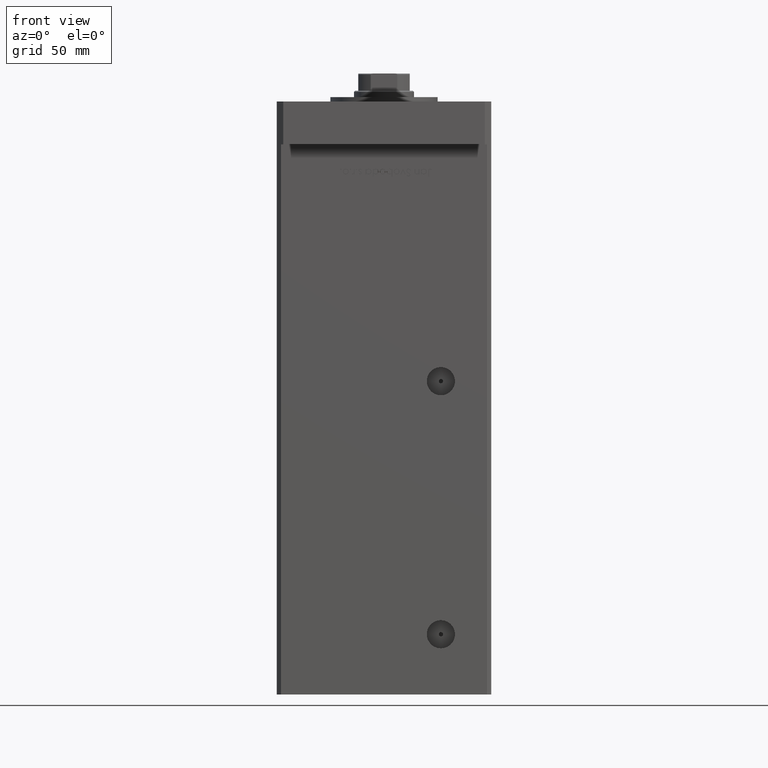
[diagram: clean part render]
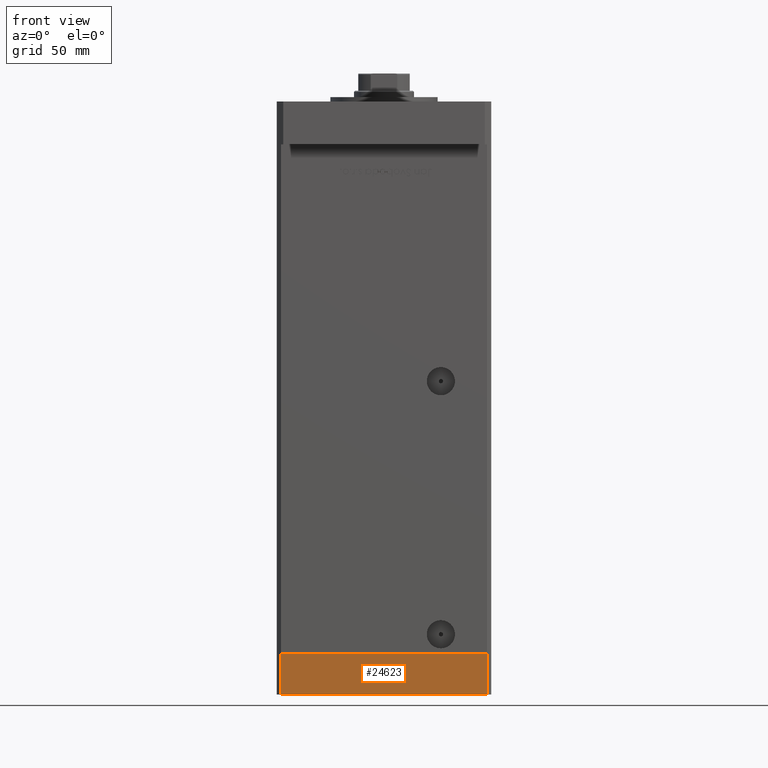
[diagram: same view with one face highlighted and labeled with its STEP entity id]
A machine part, front view. The second image highlights one B-rep face of the part: STEP entity #24623.
In plain terms, the highlighted planar face has unit normal (0, -1, -0).
Its self-contained STEP definition (entity closure, byte-faithful):
#1375 = DIRECTION ( 'NONE',  ( 0.000000000000000000, 0.000000000000000000, 1.000000000000000000 ) ) ;
#4000 = DIRECTION ( 'NONE',  ( 0.000000000000000000, -0.000000000000000000, -1.000000000000000000 ) ) ;
#4103 = LINE ( 'NONE', #24804, #38280 ) ;
#8605 = EDGE_CURVE ( 'NONE', #29289, #28909, #4103, .T. ) ;
#10633 = AXIS2_PLACEMENT_3D ( 'NONE', #53892, #37255, #4000 ) ;
#10728 = EDGE_CURVE ( 'NONE', #51690, #29289, #46894, .T. ) ;
#15553 = ORIENTED_EDGE ( 'NONE', *, *, #28654, .T. ) ;
#22316 = ORIENTED_EDGE ( 'NONE', *, *, #51780, .T. ) ;
#22323 = DIRECTION ( 'NONE',  ( 0.000000000000000000, 0.000000000000000000, 1.000000000000000000 ) ) ;
#22813 = DIRECTION ( 'NONE',  ( 1.000000000000000000, 0.000000000000000000, 0.000000000000000000 ) ) ;
#24623 = ADVANCED_FACE ( 'NONE', ( #41088 ), #53365, .T. ) ;
#24804 = CARTESIAN_POINT ( 'NONE',  ( -47.99999999999999289, -43.50000000000001421, 0.000000000000000000 ) ) ;
#25134 = VERTEX_POINT ( 'NONE', #25589 ) ;
#25589 = CARTESIAN_POINT ( 'NONE',  ( 47.99999999999999289, -43.50000000000001421, -19.00000000000000000 ) ) ;
#27253 = VECTOR ( 'NONE', #22323, 1000.000000000000000 ) ;
#27770 = EDGE_LOOP ( 'NONE', ( #36707, #42201, #22316, #15553 ) ) ;
#28654 = EDGE_CURVE ( 'NONE', #25134, #28909, #35161, .T. ) ;
#28909 = VERTEX_POINT ( 'NONE', #41634 ) ;
#29289 = VERTEX_POINT ( 'NONE', #39581 ) ;
#31585 = CARTESIAN_POINT ( 'NONE',  ( 47.99999999999999289, -43.50000000000001421, -19.00000000000000000 ) ) ;
#32477 = DIRECTION ( 'NONE',  ( 1.000000000000000000, 0.000000000000000000, 0.000000000000000000 ) ) ;
#35161 = LINE ( 'NONE', #31585, #27253 ) ;
#36707 = ORIENTED_EDGE ( 'NONE', *, *, #8605, .F. ) ;
#37255 = DIRECTION ( 'NONE',  ( 0.000000000000000000, -1.000000000000000000, 0.000000000000000000 ) ) ;
#38185 = CARTESIAN_POINT ( 'NONE',  ( -47.99999999999999289, -43.50000000000001421, -19.00000000000000000 ) ) ;
#38280 = VECTOR ( 'NONE', #32477, 1000.000000000000000 ) ;
#39581 = CARTESIAN_POINT ( 'NONE',  ( -47.99999999999999289, -43.50000000000001421, 0.000000000000000000 ) ) ;
#39982 = CARTESIAN_POINT ( 'NONE',  ( -47.99999999999999289, -43.50000000000001421, -19.00000000000000000 ) ) ;
#41088 = FACE_OUTER_BOUND ( 'NONE', #27770, .T. ) ;
#41634 = CARTESIAN_POINT ( 'NONE',  ( 47.99999999999999289, -43.50000000000001421, 0.000000000000000000 ) ) ;
#42201 = ORIENTED_EDGE ( 'NONE', *, *, #10728, .F. ) ;
#44344 = VECTOR ( 'NONE', #22813, 1000.000000000000000 ) ;
#46894 = LINE ( 'NONE', #38185, #47111 ) ;
#47111 = VECTOR ( 'NONE', #1375, 1000.000000000000000 ) ;
#51690 = VERTEX_POINT ( 'NONE', #53455 ) ;
#51780 = EDGE_CURVE ( 'NONE', #51690, #25134, #51993, .T. ) ;
#51993 = LINE ( 'NONE', #39982, #44344 ) ;
#53365 = PLANE ( 'NONE',  #10633 ) ;
#53455 = CARTESIAN_POINT ( 'NONE',  ( -47.99999999999999289, -43.50000000000001421, -19.00000000000000000 ) ) ;
#53892 = CARTESIAN_POINT ( 'NONE',  ( -47.99999999999999289, -43.50000000000001421, -19.00000000000000000 ) ) ;